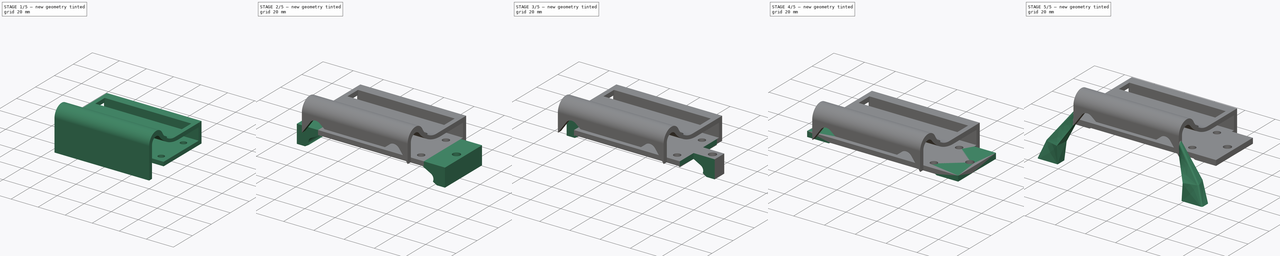
[diagram: build sequence overview — one tinted view per stage of 5, left to right]
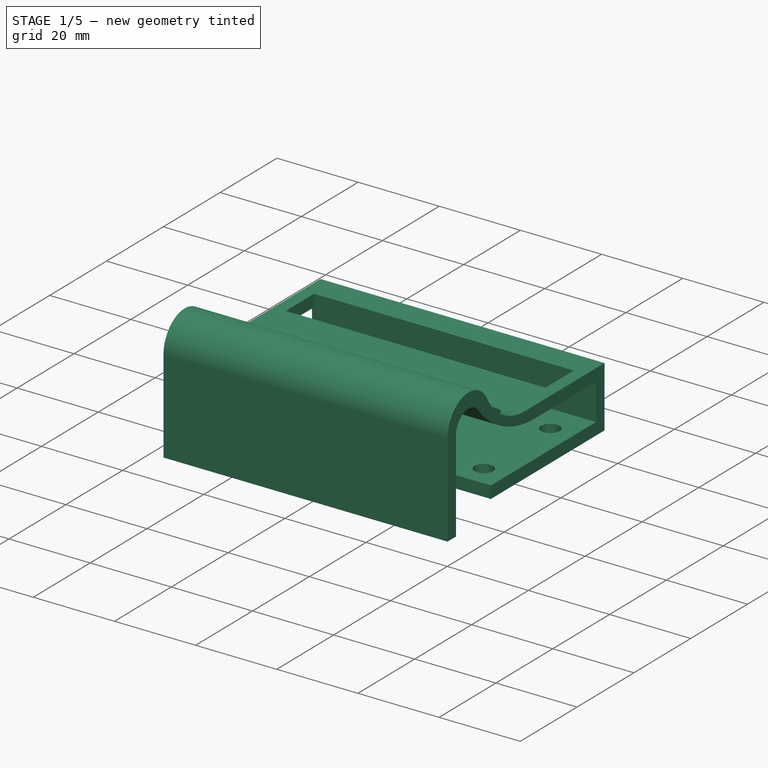
[diagram: stage 1 of 5 — iso view after this stage's code; geometry added in this stage tinted green]
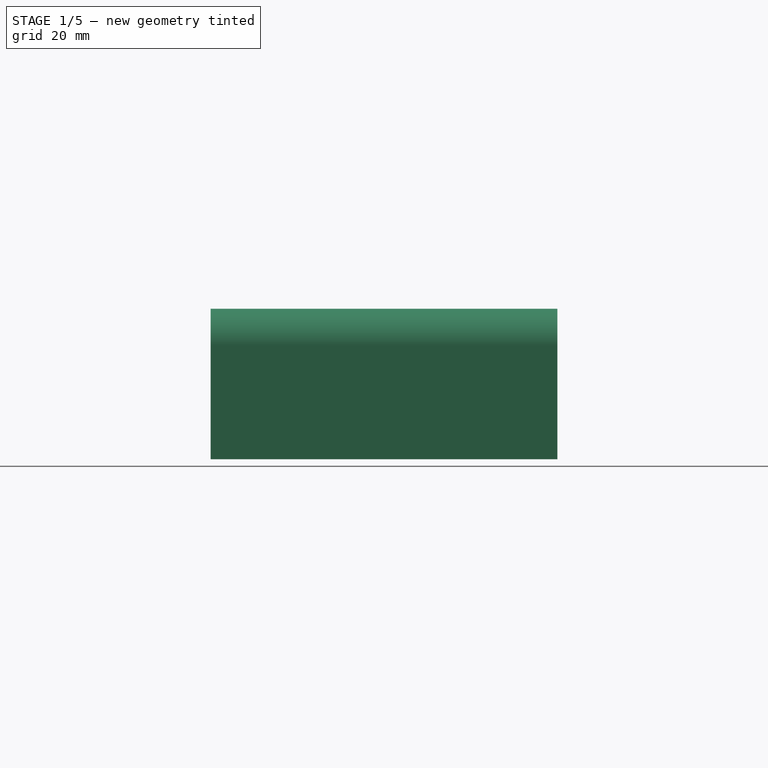
[diagram: stage 1 of 5 — front view after this stage's code; geometry added in this stage tinted green]
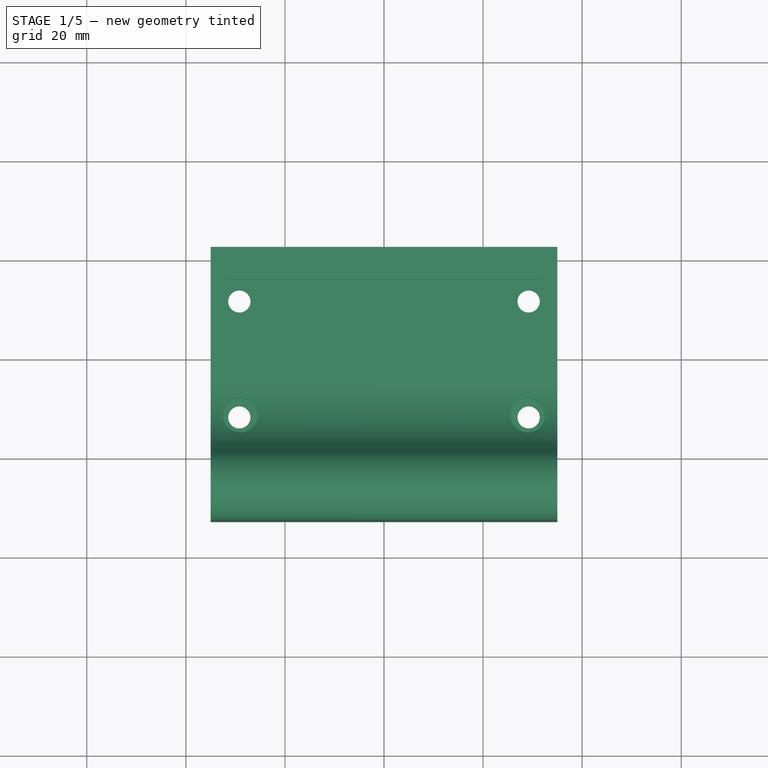
[diagram: stage 1 of 5 — top view after this stage's code; geometry added in this stage tinted green]
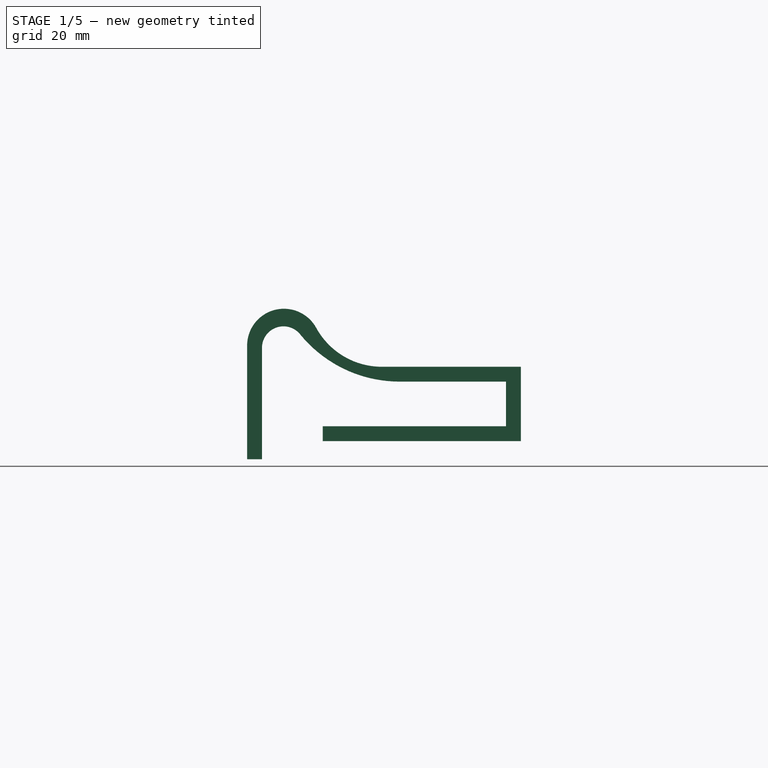
[diagram: stage 1 of 5 — right view after this stage's code; geometry added in this stage tinted green]
FCSTD DOCUMENT  (FreeCAD 0.20R29410 (Git))
Label: cover2
License: All rights reserved
LicenseURL: http://en.wikipedia.org/wiki/All_rights_reserved
objects: Sketcher::SketchObject×15, PartDesign::Mirrored×10, PartDesign::Pocket×7, PartDesign::Plane×7, PartDesign::Pad×5, PartDesign::MultiTransform×2, PartDesign::AdditiveLoft×2, PartDesign::Fillet×2, PartDesign::Body×1
note: 67 computed .brp shape members not serialized (recipe doc carries the construction recipe); baked Part::Feature solids carry a one-line shape summary decoded from their .brp

FEATURE [Sketcher::SketchObject] Sketch004
  FullyConstrained = true
  MapMode = 5
  Placement = pos=(0,0,0) rot=(0.57735,0.57735,0.57735;2.0944rad)
  Support = -> [YZ_Plane001]
  sketch-geometry (5):
    g0: LineSegment StartX=-17.5 StartY=-1.5 StartZ=0 EndX=-17.5 EndY=1.5 EndZ=0
    g1: LineSegment StartX=-17.5 StartY=1.5 StartZ=0 EndX=17.5 EndY=1.5 EndZ=0
    g2: LineSegment StartX=17.5 StartY=1.5 StartZ=0 EndX=17.5 EndY=-1.5 EndZ=0
    g3: LineSegment StartX=17.5 StartY=-1.5 StartZ=0 EndX=-17.5 EndY=-1.5 EndZ=0
    g4: GeomPoint X=0 Y=0 Z=0
  constraints (12):
    c: Coincident(g0,g1)
    c: Coincident(g1,g2)
    c: Coincident(g2,g3)
    c: Coincident(g3,g0)
    c: Horizontal(g1)
    c: Horizontal(g3)
    c: Vertical(g0)
    c: Vertical(g2)
    c: Symmetric(g1,g0,g4)
    c: Coincident(g4,g-1)
    c: DistanceY(g2,g2) = 3
    c: DistanceX(g1,g1) = 35
FEATURE [PartDesign::Pad] Pad001
  Direction = (1,-2e-16,3e-16)
  Length = 70
  Length2 = 10
  Midplane = true
  Placement = pos=(0,0,0) rot=(0.57735,0.57735,0.57735;2.0944rad)
  Profile = -> Sketch004
  ReferenceAxis = -> Sketch004 [N_Axis]
  Type = 0
FEATURE [Sketcher::SketchObject] Sketch005
  FullyConstrained = true
  MapMode = 5
  Support = -> [XY_Plane001]
  sketch-geometry (1):
    g0: Circle CenterX=-29.2 CenterY=11.7 CenterZ=0 NormalX=0 NormalY=0 NormalZ=1 AngleXU=0 Radius=2.25
  constraints (3):
    c: DistanceX(g0) = -29.2
    c: DistanceY(g0) = 11.7
    c: Diameter(g0) = 4.5
FEATURE [PartDesign::Pocket] Pocket003
  BaseFeature = -> Pad001
  Direction = (0,0,-1)
  Length = 20
  Length2 = 5
  Midplane = true
  Placement = pos=(0,0,0) rot=(0.57735,0.57735,0.57735;2.0944rad)
  Profile = -> Sketch005
  ReferenceAxis = -> Sketch005 [N_Axis]
  Type = 0
FEATURE [PartDesign::Mirrored] Mirrored
  MirrorPlane = -> Sketch005 [V_Axis]
  Placement = pos=(0,0,0) rot=(0.57735,0.57735,0.57735;2.0944rad)
FEATURE [PartDesign::Mirrored] Mirrored001
  MirrorPlane = -> XZ_Plane001
  Placement = pos=(0,0,0) rot=(0.57735,0.57735,0.57735;2.0944rad)
FEATURE [PartDesign::MultiTransform] MultiTransform
  BaseFeature = -> Pocket003
  Originals = -> [Pocket003]
  Placement = pos=(0,0,0) rot=(0.57735,0.57735,0.57735;2.0944rad)
  Transformations = -> [Mirrored,Mirrored001]
FEATURE [Sketcher::SketchObject] Sketch
  FullyConstrained = false
  MapMode = 5
  Placement = pos=(0,0,0) rot=(0.57735,0.57735,0.57735;2.0944rad)
  Support = -> [YZ_Plane001]
  sketch-geometry (14):
    g0: LineSegment StartX=22.5 StartY=-1.5 StartZ=0 EndX=22.5 EndY=13.5 EndZ=0
    g1: LineSegment StartX=22.5 StartY=13.5 StartZ=0 EndX=-5.55778 EndY=13.5 EndZ=0
    g2: LineSegment StartX=22.5 StartY=-1.5 StartZ=0 EndX=17.5 EndY=-1.5 EndZ=0
    g3: LineSegment StartX=17.5 StartY=-1.5 StartZ=0 EndX=17.5 EndY=1.5 EndZ=0
    g4: LineSegment StartX=17.5 StartY=1.5 StartZ=0 EndX=19.5 EndY=1.5 EndZ=0
    g5: LineSegment StartX=19.5 StartY=1.5 StartZ=0 EndX=19.5 EndY=10.5 EndZ=0
    g6: LineSegment StartX=19.5 StartY=10.5 StartZ=0 EndX=-1.93024 EndY=10.5 EndZ=0
    g7: LineSegment StartX=-32.7605 StartY=17.7839 StartZ=0 EndX=-32.7605 EndY=-5.16837 EndZ=0
    g8: LineSegment StartX=-32.7605 StartY=-5.16837 StartZ=0 EndX=-29.7605 EndY=-5.16837 EndZ=0
    g9: LineSegment StartX=-29.7605 StartY=-5.16837 StartZ=0 EndX=-29.7605 EndY=17.3291 EndZ=0
    g10: ArcOfCircle CenterX=-1.93024 CenterY=36.4966 CenterZ=0 NormalX=0 NormalY=0 NormalZ=1 AngleXU=0 Radius=25.9966 StartAngle=3.82578 EndAngle=4.71239
    g11: ArcOfCircle CenterX=-25.431 CenterY=17.3291 CenterZ=0 NormalX=0 NormalY=0 NormalZ=1 AngleXU=0 Radius=4.32958 StartAngle=0.68419 EndAngle=3.14159
    g12: ArcOfCircle CenterX=-25.331 CenterY=17.7839 CenterZ=0 NormalX=0 NormalY=0 NormalZ=1 AngleXU=0 Radius=7.42953 StartAngle=0.501191 EndAngle=3.14159
    g13: ArcOfCircle CenterX=-5.55778 CenterY=28.6166 CenterZ=0 NormalX=0 NormalY=0 NormalZ=1 AngleXU=0 Radius=15.1166 StartAngle=3.64278 EndAngle=4.71239
  constraints (32):
    c: Vertical(g0)
    c: Coincident(g0,g1)
    c: Horizontal(g1)
    c: Coincident(g0,g2)
    c: Horizontal(g2)
    c: Coincident(g2,g3)
    c: Vertical(g3)
    c: Coincident(g3,g4)
    c: Horizontal(g4)
    c: Coincident(g4,g5)
    c: Vertical(g5)
    c: Coincident(g5,g6)
    c: Horizontal(g6)
    c: DistanceY(g2) = -1.5
    c: DistanceY(g3) = 1.5
    c: DistanceX(g4,g0) = 3
    c: DistanceY(g5,g0) = 3
    c: DistanceX(g2) = 17.5
    c: DistanceX(g2,g2) = 5
    c: DistanceY(g0,g0) = 15
    c: Vertical(g7)
    c: Coincident(g7,g8)
    c: Horizontal(g8)
    c: Coincident(g8,g9)
    c: Vertical(g9)
    c: Tangent(g9,g11) = 1.5708
    c: Tangent(g10,g11) = 1.5708
    c: Tangent(g12,g7) = -1.5708
    c: Tangent(g13,g12) = 1.5708
    c: Tangent(g13,g1) = 1.5708
    c: Tangent(g10,g6) = 1.5708
    c: DistanceX(g8,g8) = 3
FEATURE [PartDesign::Pad] Pad
  BaseFeature = -> MultiTransform
  Direction = (1,-2e-16,3e-16)
  Length = 70
  Length2 = 10
  Midplane = true
  Placement = pos=(0,0,0) rot=(0.57735,0.57735,0.57735;2.0944rad)
  Profile = -> Sketch
  ReferenceAxis = -> Sketch [N_Axis]
  Type = 0
FEATURE [PartDesign::Plane] DatumPlane
  AttachmentOffset = pos=(0,0,14) rot=(0,0,1;0rad)
  Length = 126.458
  MapMode = 5
  Placement = pos=(0,0,14) rot=(0,0,1;0rad)
  ResizeMode = 0
  Support = -> [XY_Plane001]
  Width = 80.7302
FEATURE [Sketcher::SketchObject] Sketch006
  FullyConstrained = true
  MapMode = 5
  Placement = pos=(0,0,14) rot=(0,0,1;0rad)
  Support = -> [DatumPlane]
  sketch-geometry (6):
    g0: LineSegment StartX=-32 StartY=16 StartZ=0 EndX=32 EndY=16 EndZ=0
    g1: LineSegment StartX=32 StartY=16 StartZ=0 EndX=32 EndY=6 EndZ=0
    g2: LineSegment StartX=32 StartY=6 StartZ=0 EndX=-32 EndY=6 EndZ=0
    g3: LineSegment StartX=-32 StartY=6 StartZ=0 EndX=-32 EndY=16 EndZ=0
    g4: Circle CenterX=29 CenterY=-11.5 CenterZ=0 NormalX=0 NormalY=0 NormalZ=1 AngleXU=0 Radius=3.5
    g5: Circle CenterX=-29 CenterY=-11.5 CenterZ=0 NormalX=0 NormalY=0 NormalZ=1 AngleXU=0 Radius=3.5
  constraints (16):
    c: Coincident(g0,g1)
    c: Coincident(g1,g2)
    c: Coincident(g2,g3)
    c: Coincident(g3,g0)
    c: Horizontal(g0)
    c: Vertical(g1)
    c: Vertical(g3)
    c: Symmetric(g1,g2,g-2)
    c: DistanceX(g0,g0) = 64
    c: DistanceY(g3,g3) = 10
    c: DistanceY(g2) = 6
    c: Equal(g5,g4)
    c: Diameter(g4) = 7
    c: Symmetric(g4,g5,g-2)
    c: DistanceX(g4) = 29
    c: DistanceY(g4) = -11.5
FEATURE [PartDesign::Pocket] Pocket
  BaseFeature = -> Pad
  Direction = (0,0,-1)
  Length = 12
  Length2 = 13
  Placement = pos=(0,0,0) rot=(0.57735,0.57735,0.57735;2.0944rad)
  Profile = -> Sketch006
  ReferenceAxis = -> Sketch006 [N_Axis]
  Type = 4
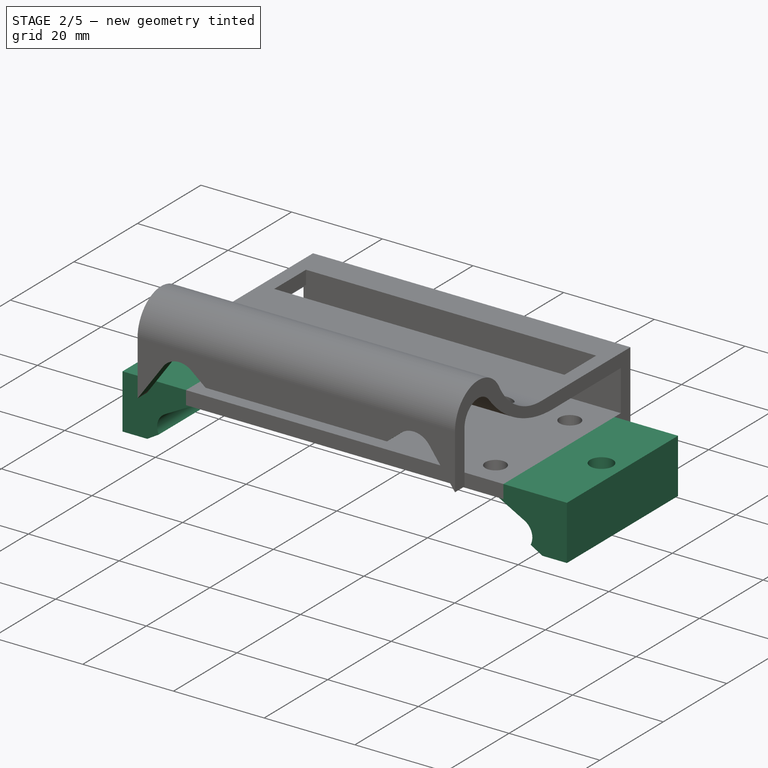
[diagram: stage 2 of 5 — iso view after this stage's code; geometry added in this stage tinted green]
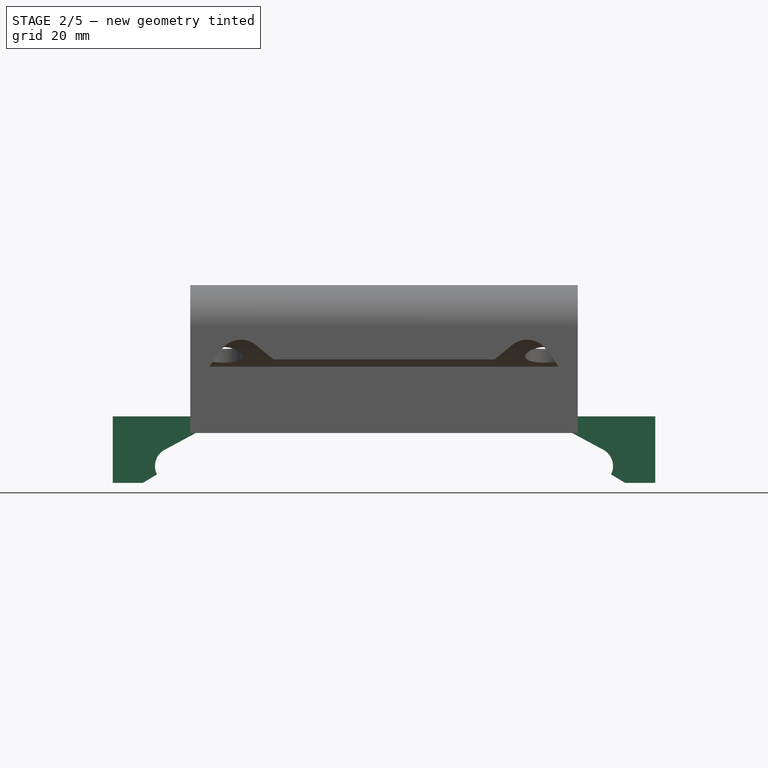
[diagram: stage 2 of 5 — front view after this stage's code; geometry added in this stage tinted green]
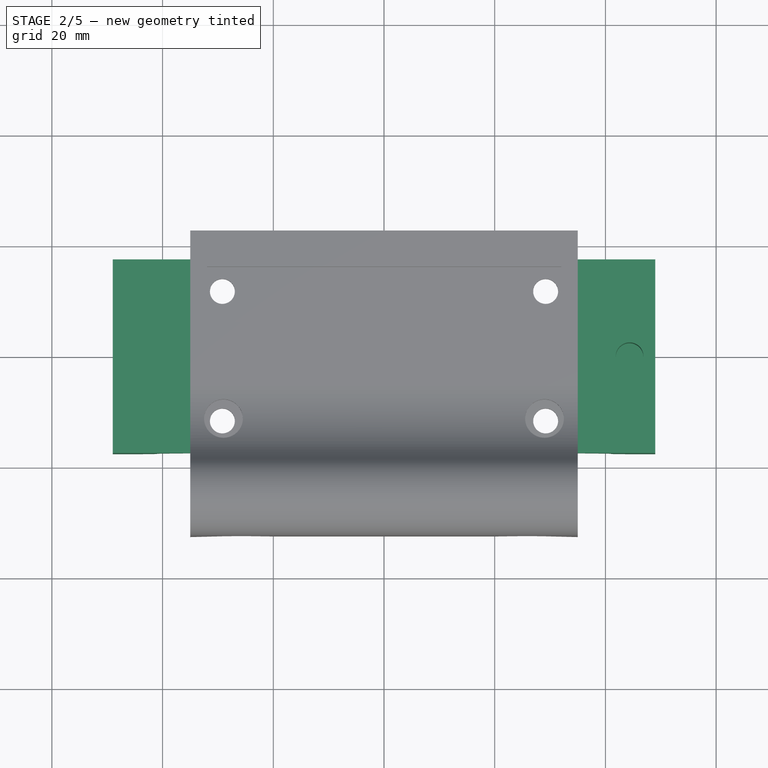
[diagram: stage 2 of 5 — top view after this stage's code; geometry added in this stage tinted green]
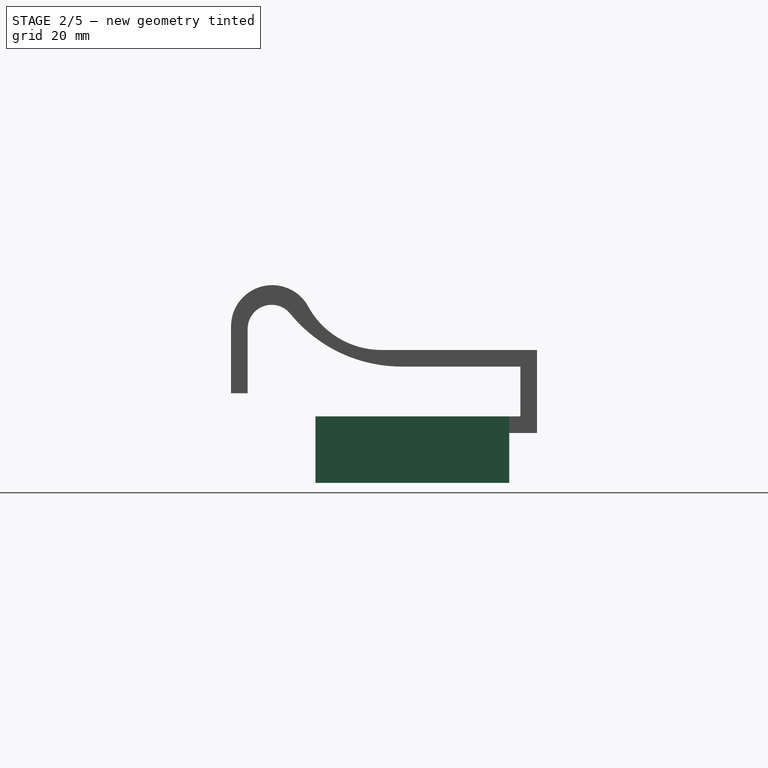
[diagram: stage 2 of 5 — right view after this stage's code; geometry added in this stage tinted green]
FEATURE [PartDesign::Plane] DatumPlane001
  AttachmentOffset = pos=(0,0,32) rot=(0,0,1;0rad)
  Length = 124.54
  MapMode = 5
  Placement = pos=(0,-32,-7.1e-15) rot=(1,0,0;1.5708rad)
  ResizeMode = 0
  Support = -> [XZ_Plane001]
  Width = 65.0063
FEATURE [Sketcher::SketchObject] Sketch007
  FullyConstrained = false
  MapMode = 5
  Placement = pos=(0,-32,-7.1e-15) rot=(1,0,0;1.5708rad)
  Support = -> [DatumPlane001]
  sketch-geometry (9):
    g0: LineSegment StartX=-20 StartY=11.8122 StartZ=0 EndX=0 EndY=11.8122 EndZ=0
    g1: LineSegment StartX=0 StartY=-6.95674 StartZ=0 EndX=-20.0808 EndY=-6.95674 EndZ=0
    g2: LineSegment StartX=-20 StartY=-6.70289 StartZ=0 EndX=-20 EndY=11.8122 EndZ=0
    g3: LineSegment StartX=0 StartY=-6.95674 StartZ=0 EndX=0 EndY=11.8122 EndZ=0
    g4: LineSegment StartX=-20 StartY=11.8122 StartZ=0 EndX=-23.1292 EndY=14.3834 EndZ=0
    g5: LineSegment StartX=-29.3416 StartY=13.5703 StartZ=0 EndX=-34.366 EndY=6.5727 EndZ=0
    g6: ArcOfCircle CenterX=-25.8545 CenterY=11.0666 CenterZ=0 NormalX=0 NormalY=0 NormalZ=1 AngleXU=0 Radius=4.29284 StartAngle=0.882977 EndAngle=2.51888
    g7: LineSegment StartX=-44.0804 StartY=-6.95674 StartZ=0 EndX=-20.0808 EndY=-6.95674 EndZ=0
    g8: LineSegment StartX=-44.0804 StartY=-6.95674 StartZ=0 EndX=-34.366 EndY=6.5727 EndZ=0
  constraints (17):
    c: Coincident(g2,g0)
    c: Horizontal(g1)
    c: Vertical(g2)
    c: Vertical(g3)
    c: Coincident(g0,g3)
    c: Coincident(g1,g3)
    c: PointOnObject(g0,g-2)
    c: Horizontal(g0)
    c: DistanceX(g0,g0) = 20
    c: Coincident(g0,g4)
    c: Tangent(g4,g6) = -1.5708
    c: Tangent(g5,g6) = -1.5708
    c: Coincident(g7,g1)
    c: Horizontal(g7)
    c: Coincident(g8,g7)
    c: Coincident(g8,g5)
    c: Parallel(g5,g8)
FEATURE [PartDesign::Pocket] Pocket004
  BaseFeature = -> Pocket
  Direction = (0,1,2e-16)
  Length = 11
  Length2 = 5
  Placement = pos=(0,0,0) rot=(0.57735,0.57735,0.57735;2.0944rad)
  Profile = -> Sketch007
  ReferenceAxis = -> Sketch007 [N_Axis]
  Type = 4
FEATURE [PartDesign::Mirrored] Mirrored002
  BaseFeature = -> Pocket004
  MirrorPlane = -> Sketch007 [V_Axis]
  Originals = -> [Pocket004]
  Placement = pos=(0,0,0) rot=(0.57735,0.57735,0.57735;2.0944rad)
FEATURE [PartDesign::Plane] DatumPlane002
  Length = 124.54
  MapMode = 5
  Placement = pos=(0,0,0) rot=(1,0,0;1.5708rad)
  ResizeMode = 0
  Support = -> [XZ_Plane001]
  Width = 65.0063
FEATURE [Sketcher::SketchObject] Sketch008
  FullyConstrained = false
  MapMode = 5
  Placement = pos=(0,0,0) rot=(1,0,0;1.5708rad)
  Support = -> [XZ_Plane001]
  sketch-geometry (7):
    g0: LineSegment StartX=-34 StartY=1.5 StartZ=0 EndX=-34 EndY=-1.5 EndZ=0
    g1: LineSegment StartX=-43.5479 StartY=-10.5 StartZ=0 EndX=-49 EndY=-10.5 EndZ=0
    g2: LineSegment StartX=-49 StartY=-10.5 StartZ=0 EndX=-49 EndY=1.5 EndZ=0
    g3: LineSegment StartX=-49 StartY=1.5 StartZ=0 EndX=-34 EndY=1.5 EndZ=0
    g4: ArcOfCircle CenterX=-38.0449 CenterY=-7.4592 CenterZ=0 NormalX=0 NormalY=0 NormalZ=1 AngleXU=0 Radius=3.32891 StartAngle=2.06479 EndAngle=3.61335
    g5: LineSegment StartX=-39.6233 StartY=-4.52827 StartZ=0 EndX=-34 EndY=-1.5 EndZ=0
    g6: LineSegment StartX=-43.5479 StartY=-10.5 StartZ=0 EndX=-41.0102 EndY=-8.97204 EndZ=0
  constraints (16):
    c: Vertical(g0)
    c: Coincident(g1,g2)
    c: Vertical(g2)
    c: Coincident(g2,g3)
    c: Coincident(g3,g0)
    c: Horizontal(g3)
    c: DistanceY(g0) = 1.5
    c: DistanceX(g0) = -34
    c: DistanceY(g0,g0) = 3
    c: DistanceX(g3,g3) = 15
    c: DistanceY(g2,g2) = 12
    c: Horizontal(g1)
    c: Coincident(g5,g0)
    c: Tangent(g5,g4) = 1.5708
    c: Coincident(g6,g1)
    c: Coincident(g6,g4)
FEATURE [PartDesign::Pad] Pad002
  BaseFeature = -> Mirrored002
  Direction = (0,-1,-2e-16)
  Length = 35
  Length2 = 10
  Midplane = true
  Placement = pos=(0,0,0) rot=(0.57735,0.57735,0.57735;2.0944rad)
  Profile = -> Sketch008
  ReferenceAxis = -> Sketch008 [N_Axis]
  Type = 0
FEATURE [PartDesign::Mirrored] Mirrored003
  BaseFeature = -> Pad002
  MirrorPlane = -> Sketch008 [V_Axis]
  Originals = -> [Pad002]
  Placement = pos=(0,0,0) rot=(0.57735,0.57735,0.57735;2.0944rad)
FEATURE [Sketcher::SketchObject] Sketch009
  FullyConstrained = true
  MapMode = 5
  Support = -> [XY_Plane001]
  sketch-geometry (1):
    g0: Circle CenterX=44.37 CenterY=0 CenterZ=0 NormalX=0 NormalY=0 NormalZ=1 AngleXU=0 Radius=2.5
  constraints (3):
    c: PointOnObject(g0,g-1)
    c: Diameter(g0) = 5
    c: DistanceX(g0) = 44.37
FEATURE [PartDesign::Pocket] Pocket005
  BaseFeature = -> Mirrored003
  Direction = (0,0,-1)
  Length = 9
  Length2 = 2
  Placement = pos=(0,0,0) rot=(0.57735,0.57735,0.57735;2.0944rad)
  Profile = -> Sketch009
  ReferenceAxis = -> Sketch009 [N_Axis]
  Type = 4
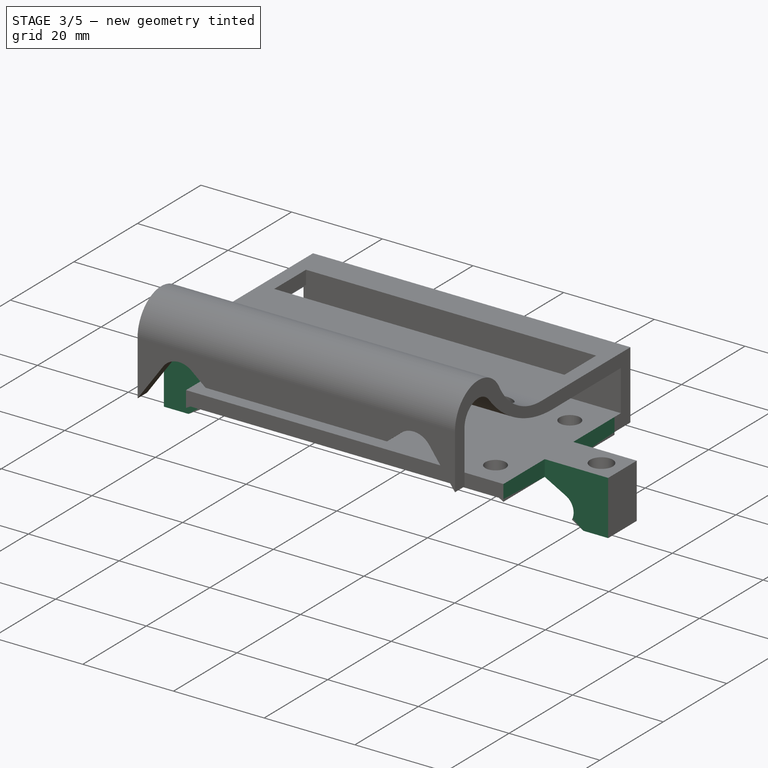
[diagram: stage 3 of 5 — iso view after this stage's code; geometry added in this stage tinted green]
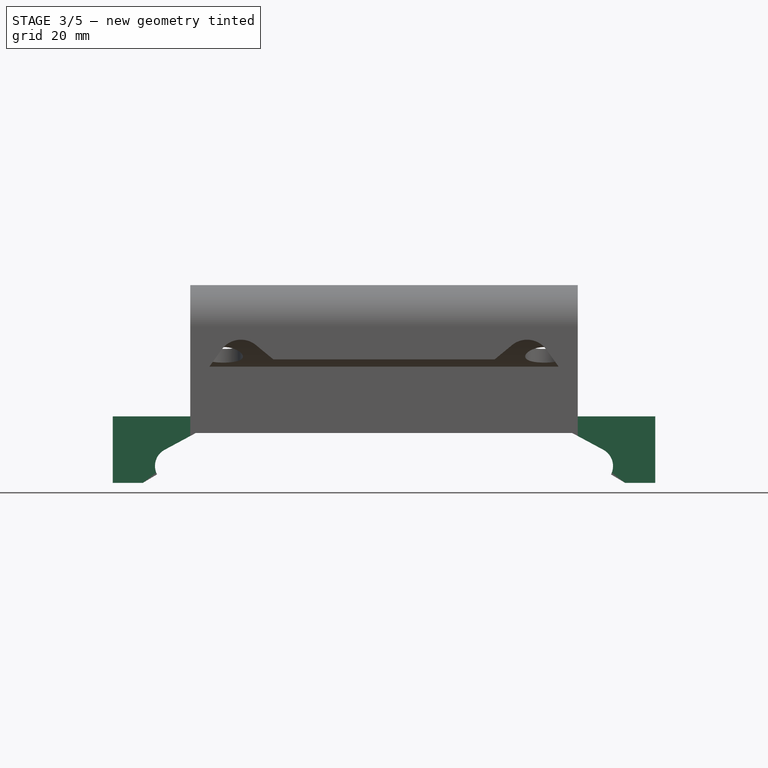
[diagram: stage 3 of 5 — front view after this stage's code; geometry added in this stage tinted green]
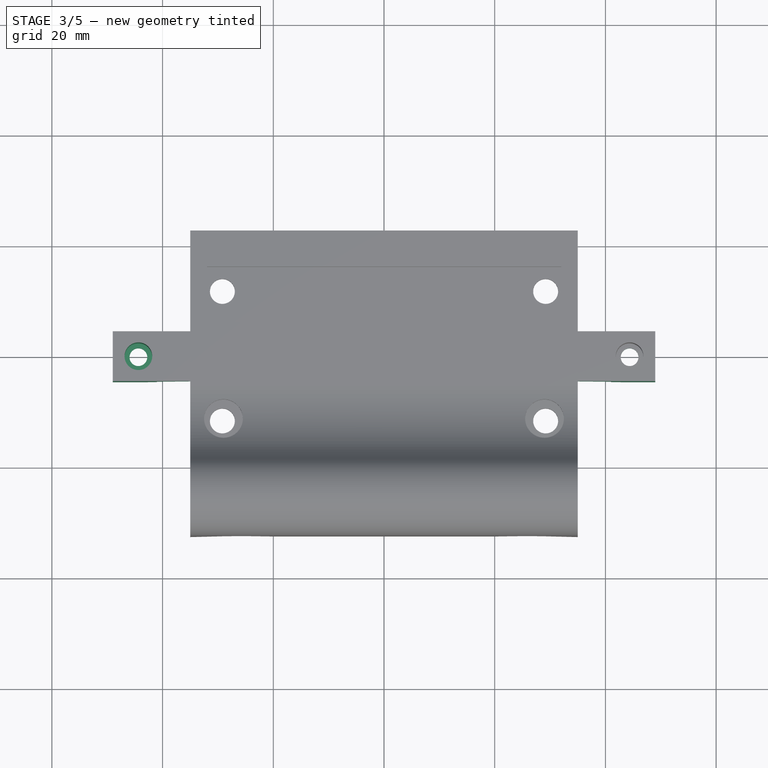
[diagram: stage 3 of 5 — top view after this stage's code; geometry added in this stage tinted green]
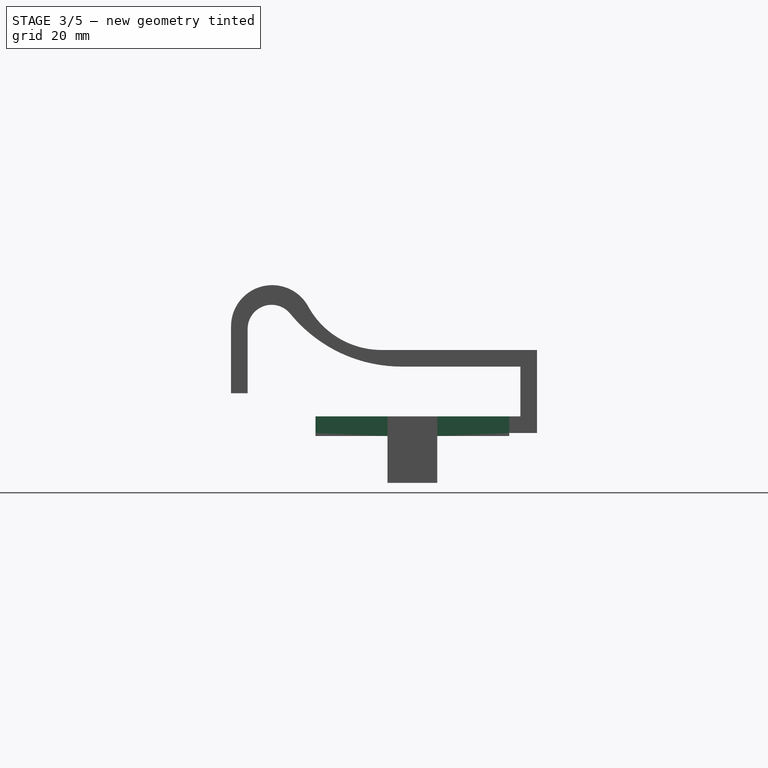
[diagram: stage 3 of 5 — right view after this stage's code; geometry added in this stage tinted green]
FEATURE [Sketcher::SketchObject] Sketch010
  FullyConstrained = true
  MapMode = 5
  Support = -> [XY_Plane001]
  sketch-geometry (1):
    g0: Circle CenterX=44.37 CenterY=0 CenterZ=0 NormalX=0 NormalY=0 NormalZ=1 AngleXU=0 Radius=1.6
  constraints (3):
    c: PointOnObject(g0,g-1)
    c: Diameter(g0) = 3.2
    c: DistanceX(g0) = 44.37
FEATURE [PartDesign::Pocket] Pocket006
  BaseFeature = -> Pocket005
  Direction = (0,0,-1)
  Length = 22
  Length2 = 5
  Midplane = true
  Placement = pos=(0,0,0) rot=(0.57735,0.57735,0.57735;2.0944rad)
  Profile = -> Sketch010
  ReferenceAxis = -> Sketch010 [N_Axis]
  Type = 0
FEATURE [PartDesign::Mirrored] Mirrored004
  BaseFeature = -> Pocket006
  MirrorPlane = -> Sketch010 [V_Axis]
  Originals = -> [Pocket006,Pocket005]
  Placement = pos=(0,0,0) rot=(0.57735,0.57735,0.57735;2.0944rad)
FEATURE [Sketcher::SketchObject] Sketch011
  FullyConstrained = true
  MapMode = 5
  Support = -> [XY_Plane001]
  sketch-geometry (4):
    g0: LineSegment StartX=-49 StartY=18.5 StartZ=0 EndX=-35 EndY=18.5 EndZ=0
    g1: LineSegment StartX=-35 StartY=18.5 StartZ=0 EndX=-35 EndY=4.5 EndZ=0
    g2: LineSegment StartX=-35 StartY=4.5 StartZ=0 EndX=-49 EndY=4.5 EndZ=0
    g3: LineSegment StartX=-49 StartY=4.5 StartZ=0 EndX=-49 EndY=18.5 EndZ=0
  constraints (12):
    c: Coincident(g0,g1)
    c: Coincident(g1,g2)
    c: Coincident(g2,g3)
    c: Coincident(g3,g0)
    c: Horizontal(g0)
    c: Horizontal(g2)
    c: Vertical(g1)
    c: Vertical(g3)
    c: DistanceX(g0) = -35
    c: DistanceY(g2) = 4.5
    c: DistanceY(g1,g1) = 14
    c: DistanceX(g2,g2) = 14
FEATURE [PartDesign::Pocket] Pocket007
  BaseFeature = -> Mirrored004
  Direction = (0,0,-1)
  Length = 24
  Length2 = 5
  Midplane = true
  Placement = pos=(0,0,0) rot=(0.57735,0.57735,0.57735;2.0944rad)
  Profile = -> Sketch011
  ReferenceAxis = -> Sketch011 [N_Axis]
  Type = 0
FEATURE [PartDesign::Mirrored] Mirrored005
  MirrorPlane = -> Sketch011 [V_Axis]
  Placement = pos=(0,0,0) rot=(0.57735,0.57735,0.57735;2.0944rad)
FEATURE [PartDesign::Mirrored] Mirrored006
  MirrorPlane = -> XZ_Plane001
  Placement = pos=(0,0,0) rot=(0.57735,0.57735,0.57735;2.0944rad)
FEATURE [PartDesign::MultiTransform] MultiTransform001
  BaseFeature = -> Pocket007
  Originals = -> [Pocket007]
  Placement = pos=(0,0,0) rot=(0.57735,0.57735,0.57735;2.0944rad)
  Transformations = -> [Mirrored005,Mirrored006]
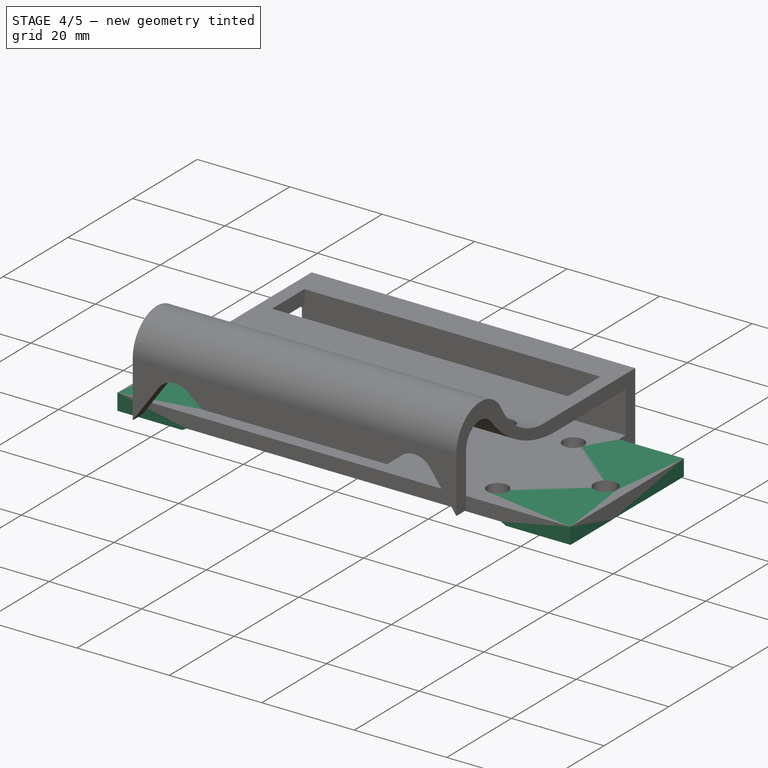
[diagram: stage 4 of 5 — iso view after this stage's code; geometry added in this stage tinted green]
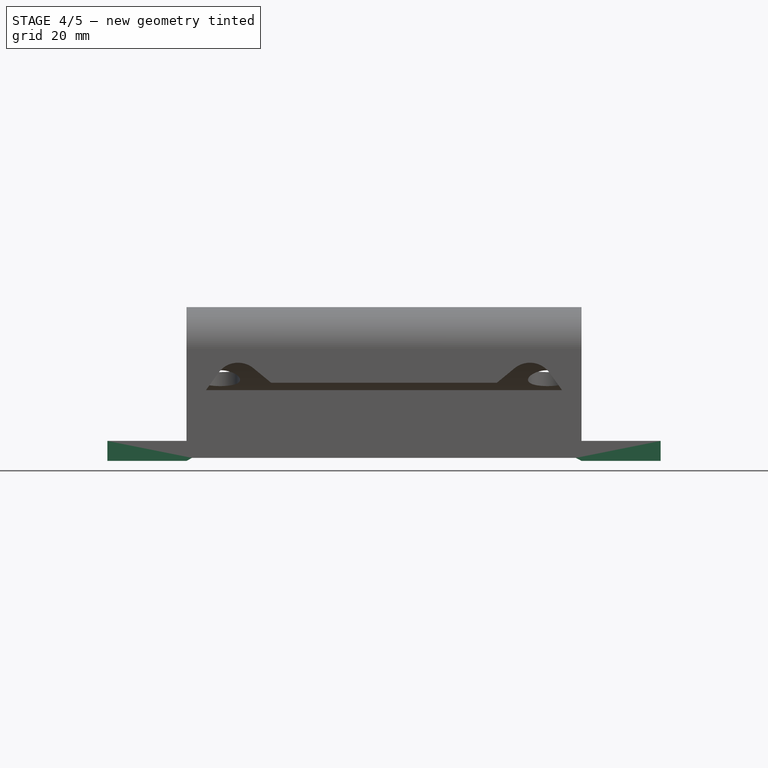
[diagram: stage 4 of 5 — front view after this stage's code; geometry added in this stage tinted green]
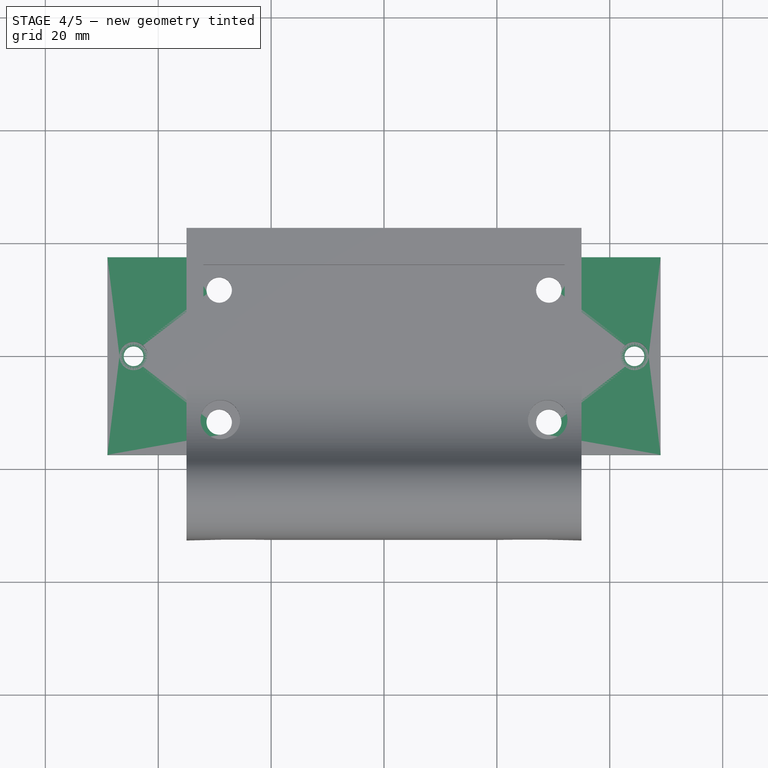
[diagram: stage 4 of 5 — top view after this stage's code; geometry added in this stage tinted green]
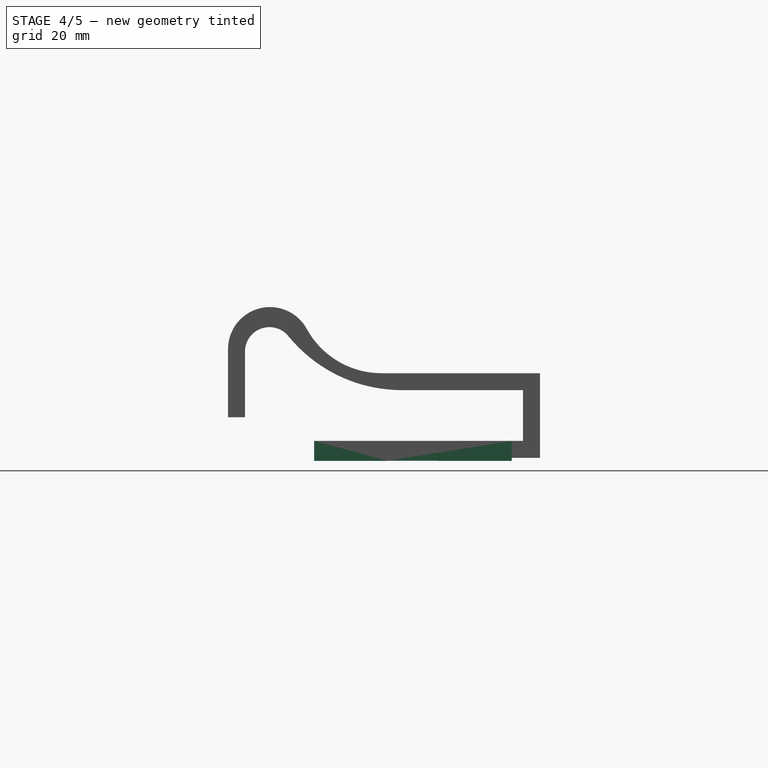
[diagram: stage 4 of 5 — right view after this stage's code; geometry added in this stage tinted green]
FEATURE [PartDesign::Pad] Pad003
  BaseFeature = -> MultiTransform001
  Direction = (-1,1e-16,0)
  Length = 14
  Length2 = 10
  Placement = pos=(0,0,0) rot=(0.57735,0.57735,0.57735;2.0944rad)
  Profile = -> MultiTransform001 [Face9,Face2]
  Type = 0
FEATURE [PartDesign::Mirrored] Mirrored007
  BaseFeature = -> Pad003
  MirrorPlane = -> YZ_Plane001
  Originals = -> [Pad003]
  Placement = pos=(0,0,0) rot=(0.57735,0.57735,0.57735;2.0944rad)
  Refine = true
FEATURE [Sketcher::SketchObject] Sketch012
  FullyConstrained = true
  MapMode = 5
  Placement = pos=(0,0,0) rot=(1,0,0;1.5708rad)
  Support = -> [XZ_Plane001]
  sketch-geometry (4):
    g0: LineSegment StartX=-50.5 StartY=-2 StartZ=0 EndX=50.5 EndY=-2 EndZ=0
    g1: LineSegment StartX=50.5 StartY=-2 StartZ=0 EndX=50.5 EndY=-15 EndZ=0
    g2: LineSegment StartX=50.5 StartY=-15 StartZ=0 EndX=-50.5 EndY=-15 EndZ=0
    g3: LineSegment StartX=-50.5 StartY=-15 StartZ=0 EndX=-50.5 EndY=-2 EndZ=0
  constraints (11):
    c: Coincident(g0,g1)
    c: Coincident(g1,g2)
    c: Coincident(g2,g3)
    c: Coincident(g3,g0)
    c: Horizontal(g2)
    c: Vertical(g1)
    c: Vertical(g3)
    c: Symmetric(g0,g0,g-2)
    c: DistanceY(g0) = -2
    c: DistanceX(g2,g2) = 101
    c: DistanceY(g3,g3) = 13
FEATURE [PartDesign::Pocket] Pocket008
  BaseFeature = -> Mirrored007
  Direction = (0,1,2e-16)
  Length = 9
  Length2 = 5
  Midplane = true
  Placement = pos=(0,0,0) rot=(0.57735,0.57735,0.57735;2.0944rad)
  Profile = -> Sketch012
  ReferenceAxis = -> Sketch012 [N_Axis]
  Type = 0
FEATURE [PartDesign::Plane] DatumPlane003
  AttachmentOffset = pos=(0,0,-2) rot=(0,0,1;0rad)
  Length = 126.458
  MapMode = 5
  Placement = pos=(0,0,-2) rot=(0,0,1;0rad)
  ResizeMode = 0
  Support = -> [XY_Plane001]
  Width = 80.7302
FEATURE [Sketcher::SketchObject] Sketch013
  ExternalGeometry = -> [Pocket008]
  FullyConstrained = true
  MapMode = 5
  Placement = pos=(0,0,-2) rot=(0,0,1;0rad)
  Support = -> [DatumPlane003]
  sketch-geometry (2):
    g0: Circle CenterX=-44.37 CenterY=4.7e-15 CenterZ=0 NormalX=0 NormalY=0 NormalZ=1 AngleXU=0 Radius=1.75
    g1: Circle CenterX=-44.37 CenterY=4.7e-15 CenterZ=0 NormalX=0 NormalY=0 NormalZ=1 AngleXU=0 Radius=2.5
  constraints (4):
    c: Coincident(g0,g-3)
    c: Coincident(g1,g0)
    c: Equal(g1,g-3)
    c: Diameter(g0) = 3.5
FEATURE [PartDesign::Pad] Pad004
  BaseFeature = -> Pocket008
  Direction = (0,0,1)
  Length = 1.2
  Length2 = 10
  Placement = pos=(0,0,0) rot=(0.57735,0.57735,0.57735;2.0944rad)
  Profile = -> Sketch013
  ReferenceAxis = -> Sketch013 [N_Axis]
  Type = 0
FEATURE [PartDesign::Mirrored] Mirrored008
  BaseFeature = -> Pad004
  MirrorPlane = -> Sketch013 [V_Axis]
  Originals = -> [Pad004]
  Placement = pos=(0,0,0) rot=(0.57735,0.57735,0.57735;2.0944rad)
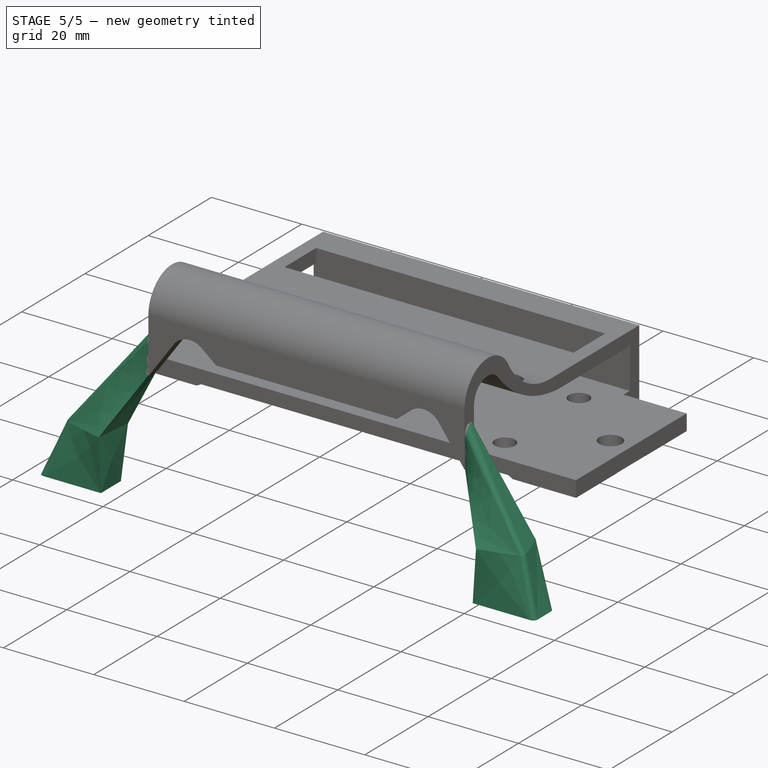
[diagram: stage 5 of 5 — iso view after this stage's code; geometry added in this stage tinted green]
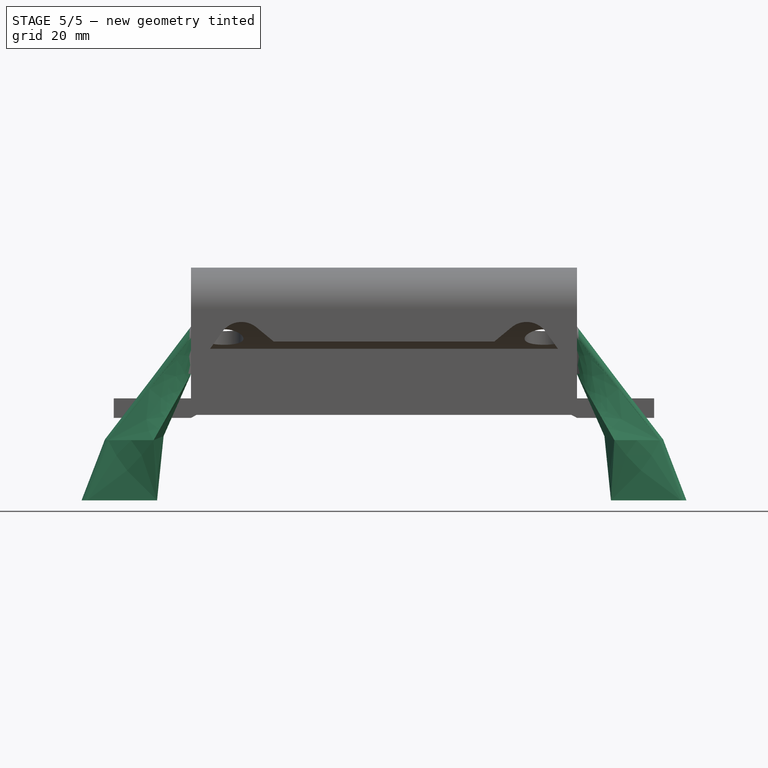
[diagram: stage 5 of 5 — front view after this stage's code; geometry added in this stage tinted green]
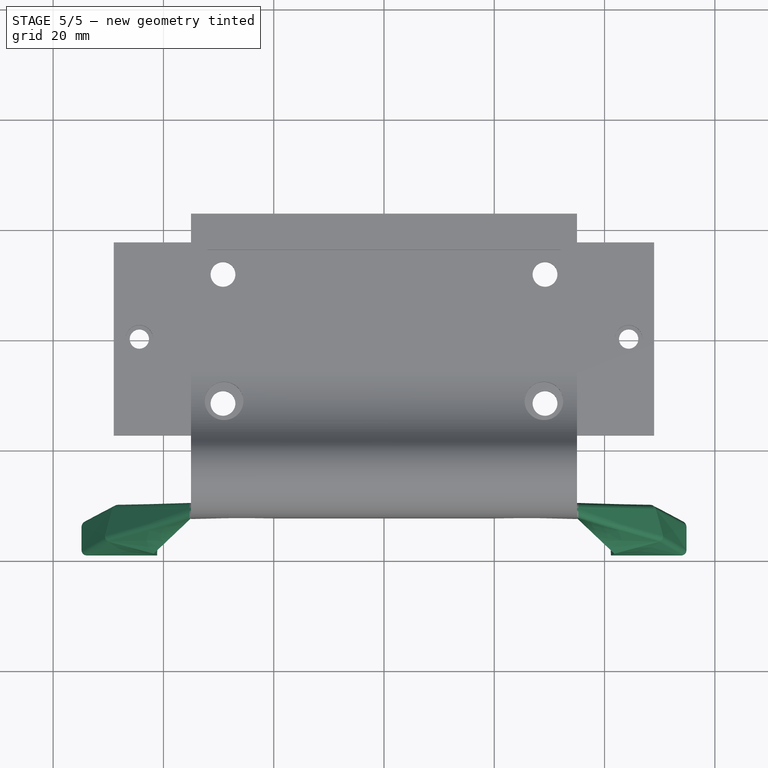
[diagram: stage 5 of 5 — top view after this stage's code; geometry added in this stage tinted green]
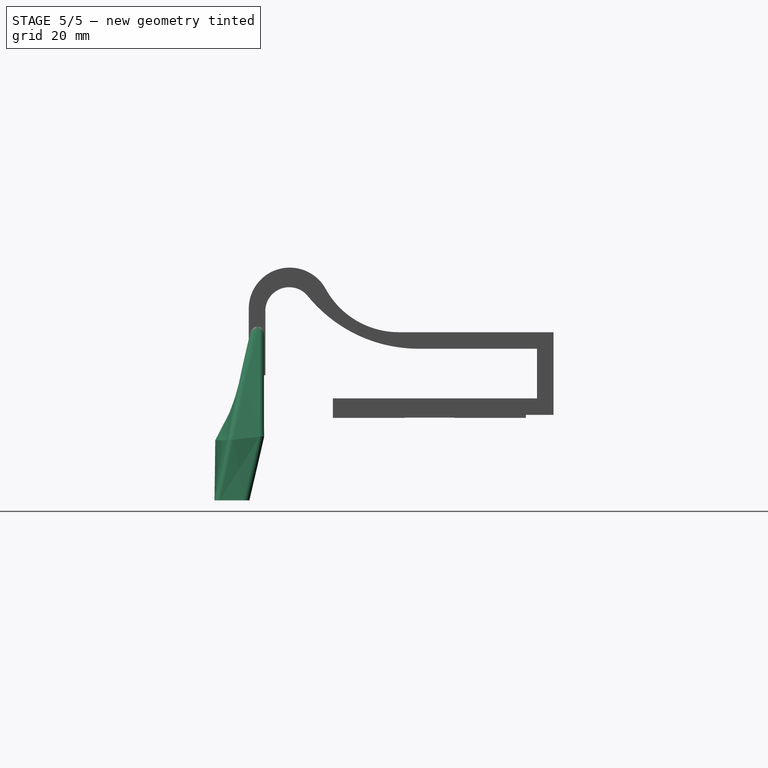
[diagram: stage 5 of 5 — right view after this stage's code; geometry added in this stage tinted green]
FEATURE [PartDesign::Plane] DatumPlane004
  AttachmentOffset = pos=(0,0,-17) rot=(0,0,1;0rad)
  Length = 126.458
  MapMode = 5
  Placement = pos=(0,0,-17) rot=(0,0,1;0rad)
  ResizeMode = 0
  Support = -> [XY_Plane001]
  Width = 80.7302
FEATURE [Sketcher::SketchObject] Sketch014
  FullyConstrained = false
  MapMode = 5
  Placement = pos=(0,0,-17) rot=(0,0,1;0rad)
  Support = -> [DatumPlane004]
  sketch-geometry (4):
    g0: LineSegment StartX=-54.8515 StartY=-32.6562 StartZ=0 EndX=-41.1586 EndY=-32.6562 EndZ=0
    g1: LineSegment StartX=-41.1586 StartY=-32.6562 StartZ=0 EndX=-41.1586 EndY=-38.9751 EndZ=0
    g2: LineSegment StartX=-41.1586 StartY=-38.9751 StartZ=0 EndX=-54.8515 EndY=-38.9751 EndZ=0
    g3: LineSegment StartX=-54.8515 StartY=-38.9751 StartZ=0 EndX=-54.8515 EndY=-32.6562 EndZ=0
  constraints (8):
    c: Coincident(g0,g1)
    c: Coincident(g1,g2)
    c: Coincident(g2,g3)
    c: Coincident(g3,g0)
    c: Horizontal(g0)
    c: Horizontal(g2)
    c: Vertical(g1)
    c: Vertical(g3)
FEATURE [PartDesign::Plane] DatumPlane005
  AttachmentOffset = pos=(0,0,-35) rot=(0,0,1;0rad)
  Length = 75.3057
  MapMode = 5
  Placement = pos=(-35,7.8e-15,-7.8e-15) rot=(0.57735,0.57735,0.57735;2.0944rad)
  ResizeMode = 0
  Support = -> [YZ_Plane001]
  Width = 61.4995
FEATURE [Sketcher::SketchObject] Sketch015
  FullyConstrained = false
  MapMode = 5
  Placement = pos=(-35,7.8e-15,-7.8e-15) rot=(0.57735,0.57735,0.57735;2.0944rad)
  Support = -> [DatumPlane005]
  sketch-geometry (4):
    g0: LineSegment StartX=-32.6296 StartY=14.5255 StartZ=0 EndX=-29.9648 EndY=14.5255 EndZ=0
    g1: LineSegment StartX=-29.9648 StartY=14.5255 StartZ=0 EndX=-29.9648 EndY=5.90737 EndZ=0
    g2: LineSegment StartX=-29.9648 StartY=5.90737 StartZ=0 EndX=-32.6296 EndY=5.90737 EndZ=0
    g3: LineSegment StartX=-32.6296 StartY=5.90737 StartZ=0 EndX=-32.6296 EndY=14.5255 EndZ=0
  constraints (8):
    c: Coincident(g0,g1)
    c: Coincident(g1,g2)
    c: Coincident(g2,g3)
    c: Coincident(g3,g0)
    c: Horizontal(g0)
    c: Horizontal(g2)
    c: Vertical(g1)
    c: Vertical(g3)
FEATURE [PartDesign::Plane] DatumPlane006
  AttachmentOffset = pos=(0,0,-1) rot=(0.369412,-0.048634,-0.927992;0.281855rad)
  Length = 144.093
  MapMode = 5
  Placement = pos=(0,0,-1) rot=(0.369412,-0.048634,-0.927992;0.281855rad)
  ResizeMode = 0
  Support = -> [XY_Plane001]
  Width = 116.509
FEATURE [Sketcher::SketchObject] Sketch016
  FullyConstrained = false
  MapMode = 5
  Placement = pos=(0,0,-1) rot=(0.369412,-0.048634,-0.927992;0.281855rad)
  Support = -> [DatumPlane006]
  sketch-geometry (4):
    g0: LineSegment StartX=-39.6943 StartY=-41.576 StartZ=0 EndX=-30.3055 EndY=-41.576 EndZ=0
    g1: LineSegment StartX=-30.3055 StartY=-41.576 StartZ=0 EndX=-30.3055 EndY=-48.5964 EndZ=0
    g2: LineSegment StartX=-30.3055 StartY=-48.5964 StartZ=0 EndX=-39.6943 EndY=-48.5964 EndZ=0
    g3: LineSegment StartX=-39.6943 StartY=-48.5964 StartZ=0 EndX=-39.6943 EndY=-41.576 EndZ=0
  constraints (8):
    c: Coincident(g0,g1)
    c: Coincident(g1,g2)
    c: Coincident(g2,g3)
    c: Coincident(g3,g0)
    c: Horizontal(g0)
    c: Horizontal(g2)
    c: Vertical(g1)
    c: Vertical(g3)
FEATURE [PartDesign::AdditiveLoft] AdditiveLoft
  BaseFeature = -> Mirrored008
  Closed = false
  Placement = pos=(0,0,0) rot=(0.57735,0.57735,0.57735;2.0944rad)
  Profile = -> Sketch016
  Ruled = false
  Sections = -> [Sketch015]
FEATURE [PartDesign::AdditiveLoft] AdditiveLoft001
  BaseFeature = -> AdditiveLoft
  Closed = false
  Placement = pos=(0,0,0) rot=(0.57735,0.57735,0.57735;2.0944rad)
  Profile = -> Sketch014
  Ruled = false
  Sections = -> [AdditiveLoft]
FEATURE [PartDesign::Mirrored] Mirrored009
  BaseFeature = -> AdditiveLoft001
  MirrorPlane = -> Sketch014 [V_Axis]
  Originals = -> [AdditiveLoft001,AdditiveLoft]
  Placement = pos=(0,0,0) rot=(0.57735,0.57735,0.57735;2.0944rad)
FEATURE [PartDesign::Fillet] Fillet
  Base = -> Mirrored009 [Edge176,Edge175,Edge191,Edge192]
  BaseFeature = -> Mirrored009
  Placement = pos=(0,0,0) rot=(0.57735,0.57735,0.57735;2.0944rad)
  Radius = 1
  SupportTransform = false
  UseAllEdges = false
FEATURE [PartDesign::Fillet] Fillet001
  Base = -> Fillet [Edge193,Edge194,Edge211,Edge210]
  BaseFeature = -> Fillet
  Placement = pos=(0,0,0) rot=(0.57735,0.57735,0.57735;2.0944rad)
  Radius = 1
  SupportTransform = false
  UseAllEdges = false
FEATURE [Sketcher::SketchObject] Sketch017
  ExternalGeometry = -> [Fillet001]
  FullyConstrained = true
  MapMode = 5
  Support = -> [XY_Plane001]
  constraints (1):
    c: DistanceX(g-3,g-4) = 88.74
FEATURE [PartDesign::Body] Body001
  Group = -> [Sketch004,Pad001,Sketch005,Pocket003,MultiTransform,Mirrored,Mirrored001,Sketch,Pad,DatumPlane,Sketch006,Pocket,DatumPlane001,Sketch007,Pocket004,Mirrored002,DatumPlane002,Sketch008,Pad002,Mirrored003,Sketch009,Pocket005,Sketch010,Pocket006,Mirrored004,Sketch011,Pocket007,MultiTransform001,Mirrored005,Mirrored006,Pad003,Mirrored007,Sketch012,Pocket008,DatumPlane003,Sketch013,Pad004,Mirrored008,+12 more]
  Origin = -> Origin001
  Tip = -> Fillet001
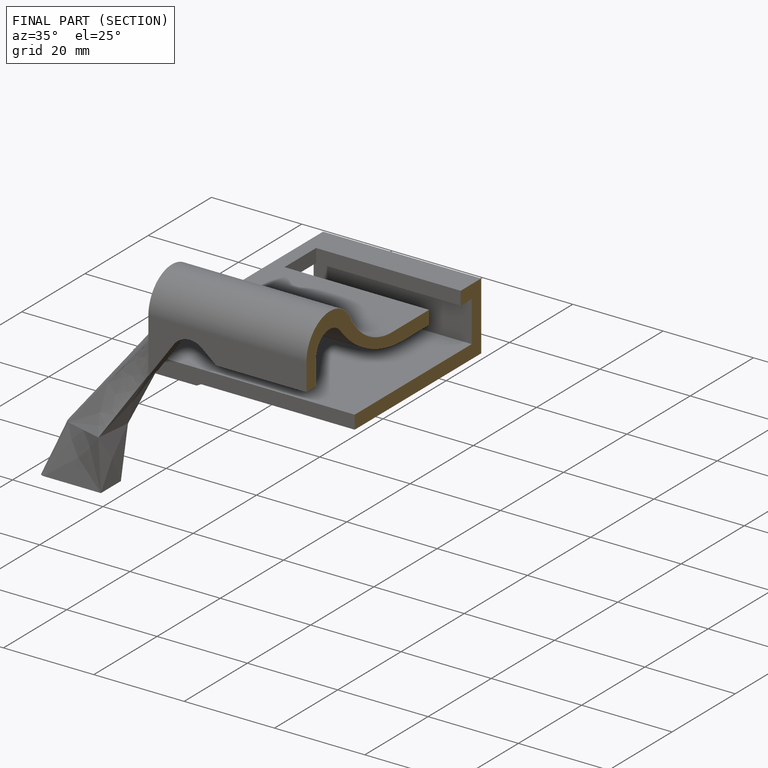
[diagram: finished part — half-section view (interior)]
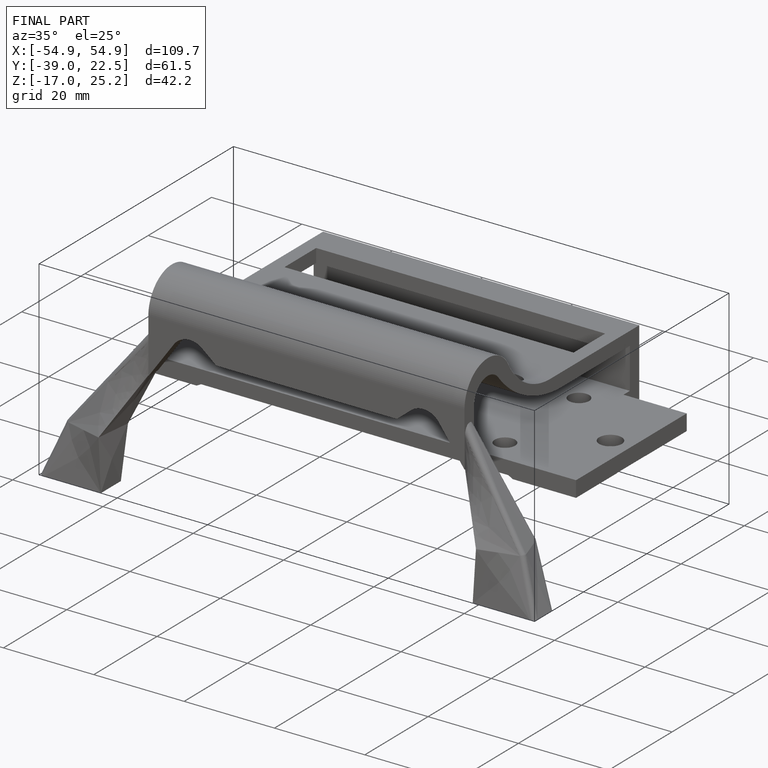
[diagram: finished part — iso view with bounding-box wireframe]
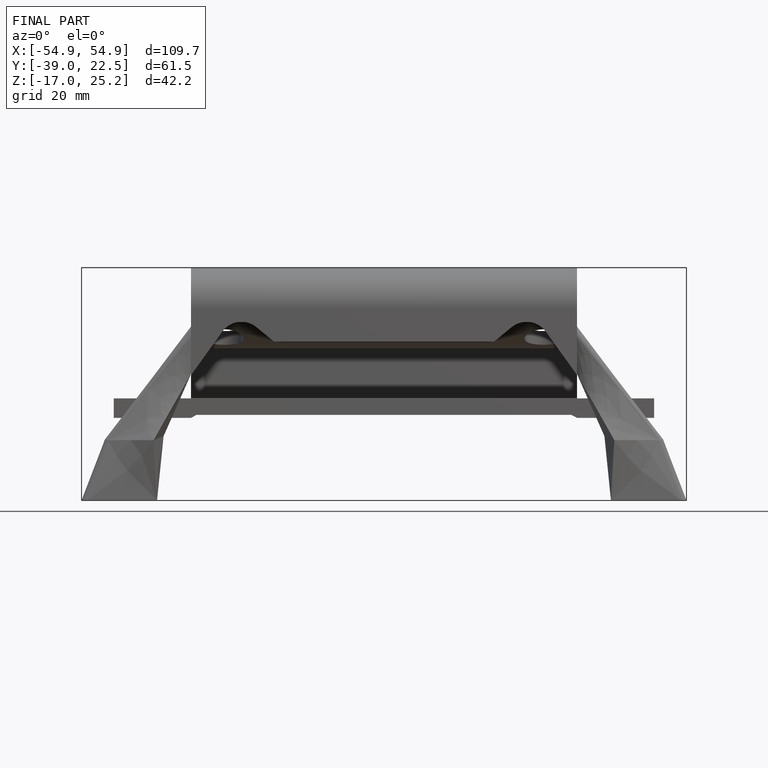
[diagram: finished part — front view with bounding-box wireframe]
